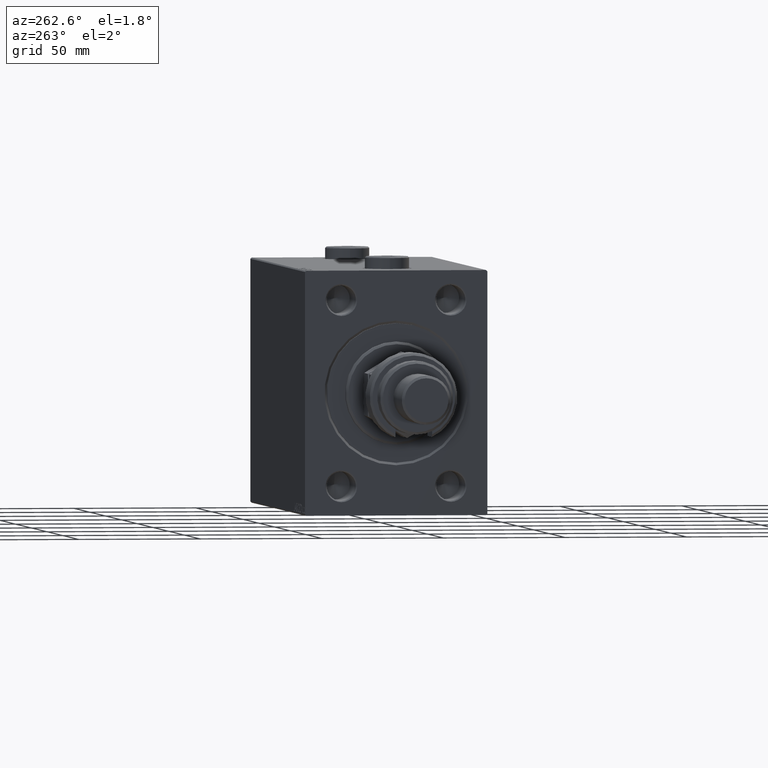
[diagram: clean part render]
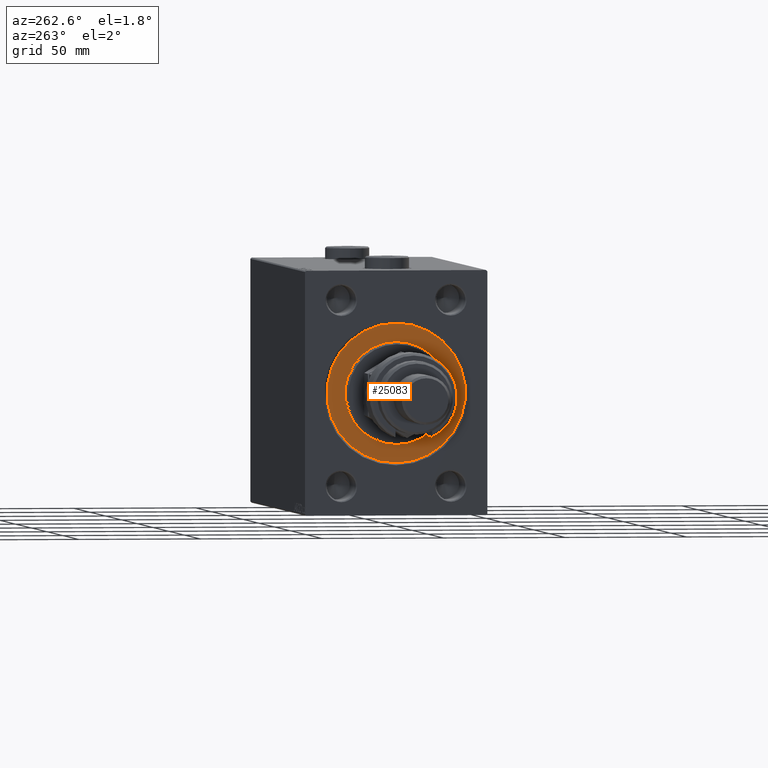
[diagram: same view with one face highlighted and labeled with its STEP entity id]
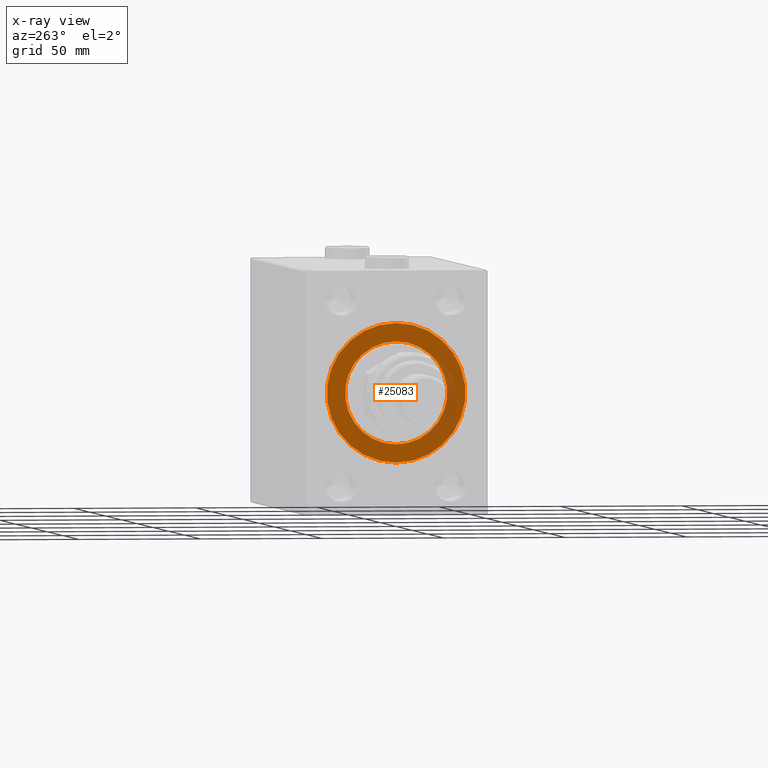
[diagram: x-ray of the same camera — body ghosted, the highlighted face saturated]
A machine part, auxiliary view. The second image highlights one B-rep face of the part: STEP entity #25083.
The next image is the same camera in x-ray: the body ghosted, the highlighted face saturated — about 10% of this face is hidden behind the body in this view.
In plain terms, the highlighted planar face has unit normal (1, -0, -0).
Its self-contained STEP definition (entity closure, byte-faithful):
#1618 = CARTESIAN_POINT ( 'NONE',  ( 0.000000000000000000, 0.000000000000000000, 0.000000000000000000 ) ) ;
#2028 = CARTESIAN_POINT ( 'NONE',  ( 0.000000000000000000, 0.000000000000000000, 0.000000000000000000 ) ) ;
#3011 = PLANE ( 'NONE',  #16322 ) ;
#3123 = ORIENTED_EDGE ( 'NONE', *, *, #20093, .F. ) ;
#3754 = FACE_BOUND ( 'NONE', #16306, .T. ) ;
#4775 = CIRCLE ( 'NONE', #32171, 21.00000000000000000 ) ;
#7227 = EDGE_CURVE ( 'NONE', #9559, #42783, #19604, .T. ) ;
#8296 = DIRECTION ( 'NONE',  ( 0.000000000000000000, 0.000000000000000000, 1.000000000000000000 ) ) ;
#9559 = VERTEX_POINT ( 'NONE', #43624 ) ;
#10632 = CARTESIAN_POINT ( 'NONE',  ( 0.000000000000000000, 0.000000000000000000, 0.000000000000000000 ) ) ;
#11357 = DIRECTION ( 'NONE',  ( 0.000000000000000000, 0.000000000000000000, 1.000000000000000000 ) ) ;
#11445 = CARTESIAN_POINT ( 'NONE',  ( 0.000000000000000000, 0.000000000000000000, 21.00000000000000000 ) ) ;
#13370 = DIRECTION ( 'NONE',  ( 1.000000000000000000, -0.000000000000000000, 0.000000000000000000 ) ) ;
#13554 = DIRECTION ( 'NONE',  ( 1.000000000000000000, -0.000000000000000000, 0.000000000000000000 ) ) ;
#13695 = ORIENTED_EDGE ( 'NONE', *, *, #7227, .F. ) ;
#14629 = CARTESIAN_POINT ( 'NONE',  ( 0.000000000000000000, 2.571758278209441661E-15, -21.00000000000000000 ) ) ;
#16306 = EDGE_LOOP ( 'NONE', ( #30090, #17787 ) ) ;
#16322 = AXIS2_PLACEMENT_3D ( 'NONE', #33438, #48413, #11357 ) ;
#16742 = CIRCLE ( 'NONE', #33952, 28.50000000000000000 ) ;
#17787 = ORIENTED_EDGE ( 'NONE', *, *, #35873, .F. ) ;
#18003 = AXIS2_PLACEMENT_3D ( 'NONE', #10632, #40570, #33950 ) ;
#19604 = CIRCLE ( 'NONE', #18003, 28.50000000000000000 ) ;
#20093 = EDGE_CURVE ( 'NONE', #42783, #9559, #16742, .T. ) ;
#20233 = VERTEX_POINT ( 'NONE', #14629 ) ;
#21681 = FACE_OUTER_BOUND ( 'NONE', #31048, .T. ) ;
#25083 = ADVANCED_FACE ( 'NONE', ( #3754, #21681 ), #3011, .F. ) ;
#27342 = CARTESIAN_POINT ( 'NONE',  ( 0.000000000000000000, 0.000000000000000000, -28.50000000000000000 ) ) ;
#30090 = ORIENTED_EDGE ( 'NONE', *, *, #37146, .F. ) ;
#31048 = EDGE_LOOP ( 'NONE', ( #3123, #13695 ) ) ;
#31353 = AXIS2_PLACEMENT_3D ( 'NONE', #2028, #13554, #47171 ) ;
#32135 = CIRCLE ( 'NONE', #31353, 21.00000000000000000 ) ;
#32171 = AXIS2_PLACEMENT_3D ( 'NONE', #1618, #13370, #43316 ) ;
#33438 = CARTESIAN_POINT ( 'NONE',  ( 0.000000000000000000, 0.000000000000000000, 0.000000000000000000 ) ) ;
#33950 = DIRECTION ( 'NONE',  ( 0.000000000000000000, 0.000000000000000000, 1.000000000000000000 ) ) ;
#33952 = AXIS2_PLACEMENT_3D ( 'NONE', #35284, #46087, #8296 ) ;
#35284 = CARTESIAN_POINT ( 'NONE',  ( 0.000000000000000000, 0.000000000000000000, 0.000000000000000000 ) ) ;
#35873 = EDGE_CURVE ( 'NONE', #20233, #41843, #32135, .T. ) ;
#37146 = EDGE_CURVE ( 'NONE', #41843, #20233, #4775, .T. ) ;
#40570 = DIRECTION ( 'NONE',  ( -1.000000000000000000, 0.000000000000000000, 0.000000000000000000 ) ) ;
#41843 = VERTEX_POINT ( 'NONE', #11445 ) ;
#42783 = VERTEX_POINT ( 'NONE', #27342 ) ;
#43316 = DIRECTION ( 'NONE',  ( 0.000000000000000000, 0.000000000000000000, -1.000000000000000000 ) ) ;
#43624 = CARTESIAN_POINT ( 'NONE',  ( 0.000000000000000000, 3.490243377569956456E-15, 28.50000000000000000 ) ) ;
#46087 = DIRECTION ( 'NONE',  ( -1.000000000000000000, 0.000000000000000000, 0.000000000000000000 ) ) ;
#47171 = DIRECTION ( 'NONE',  ( 0.000000000000000000, 0.000000000000000000, -1.000000000000000000 ) ) ;
#48413 = DIRECTION ( 'NONE',  ( -1.000000000000000000, 0.000000000000000000, 0.000000000000000000 ) ) ;